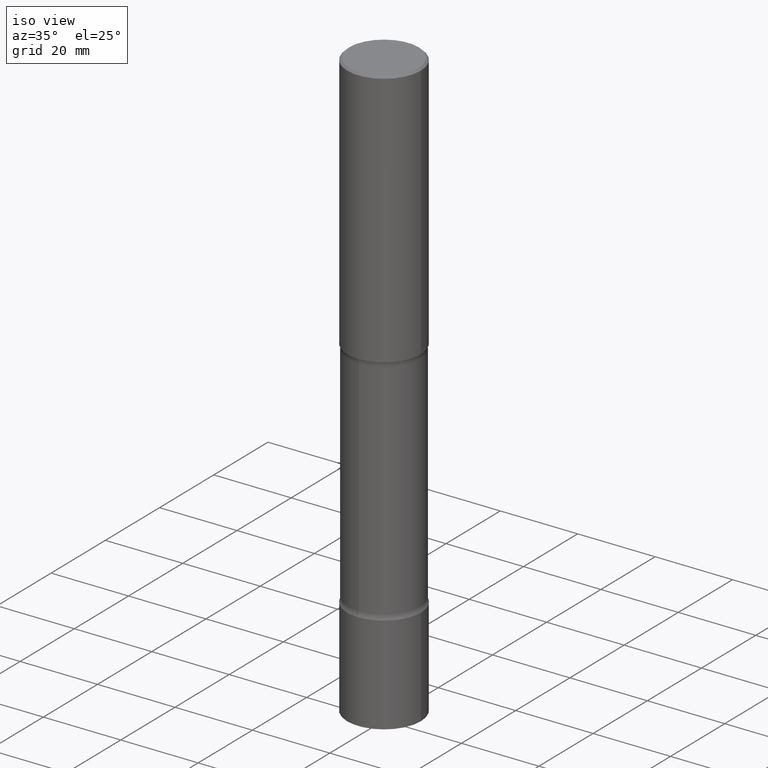
[diagram: clean part render]
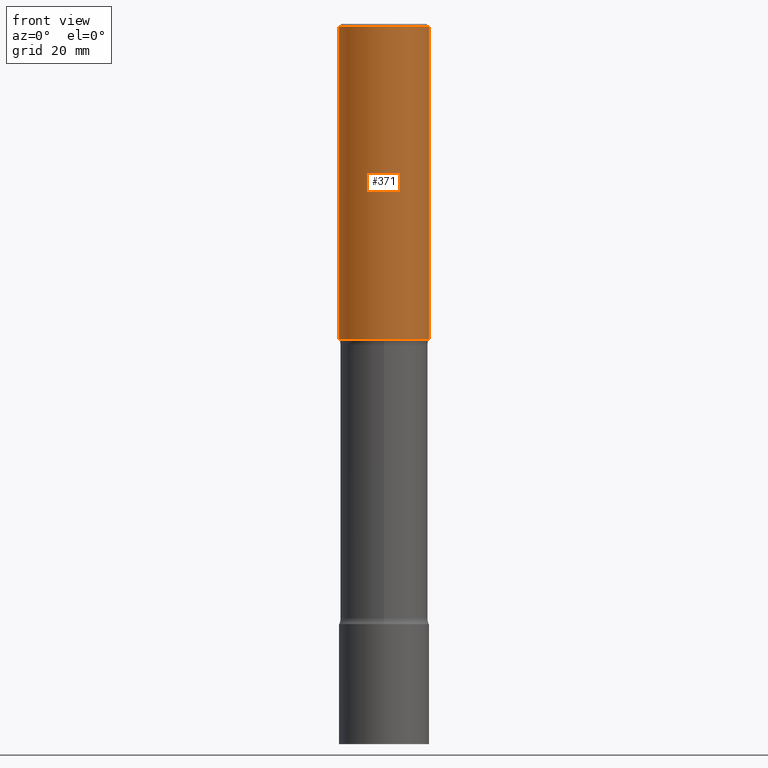
[diagram: tour spotlight — one face highlighted and labeled with its STEP entity id]
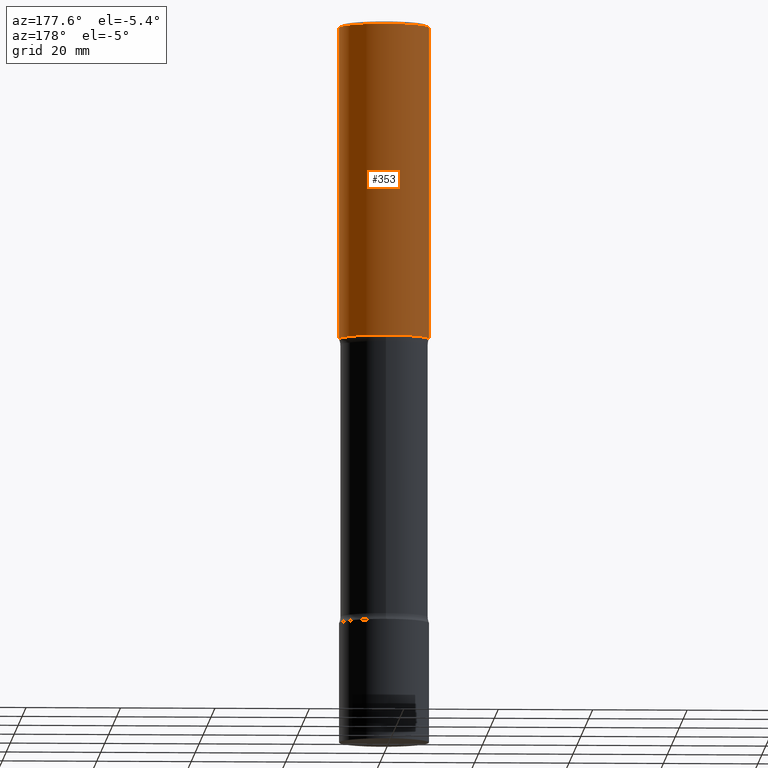
[diagram: tour spotlight — one face highlighted and labeled with its STEP entity id]
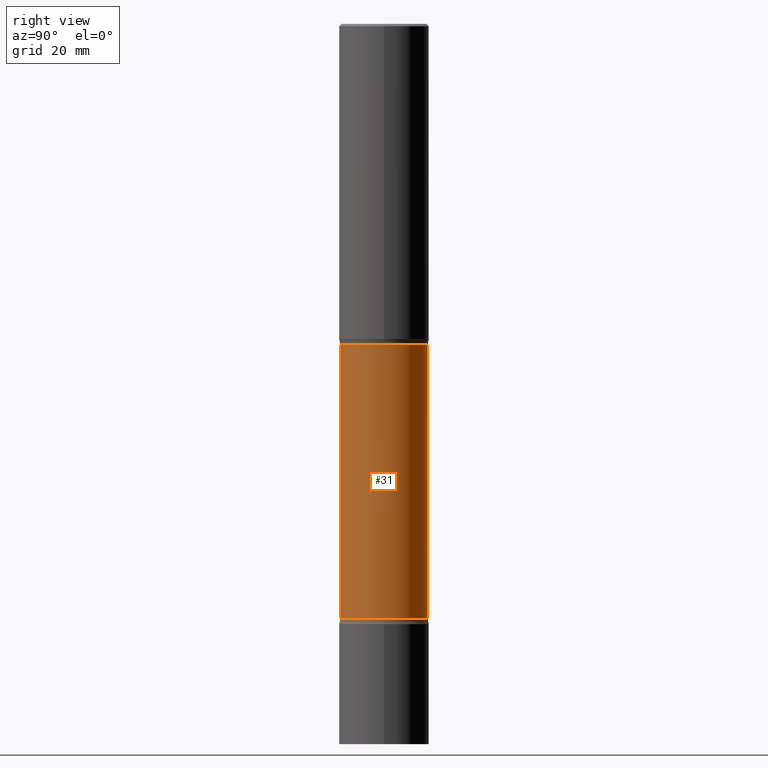
[diagram: tour spotlight — one face highlighted and labeled with its STEP entity id]
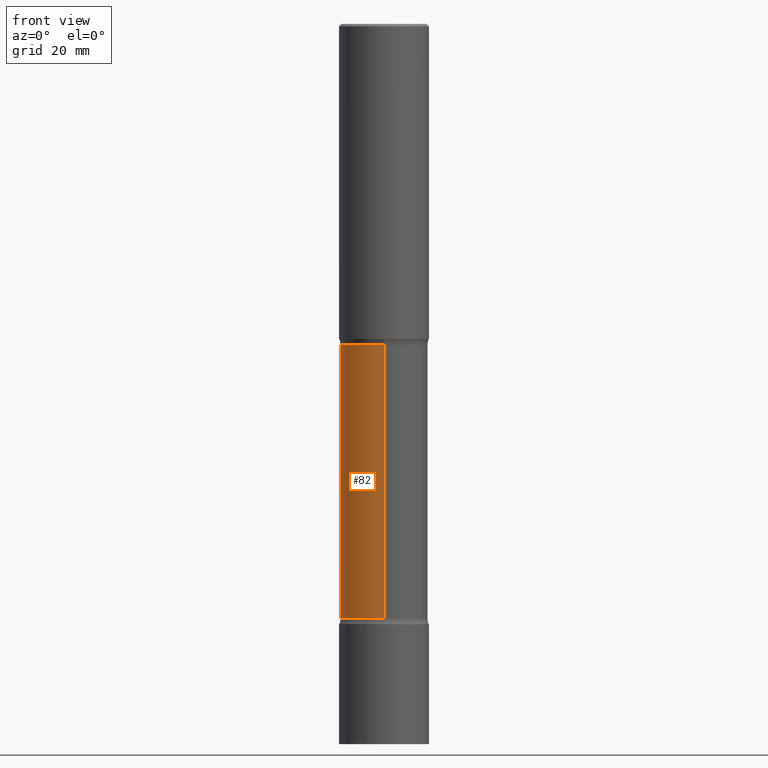
[diagram: tour spotlight — one face highlighted and labeled with its STEP entity id]
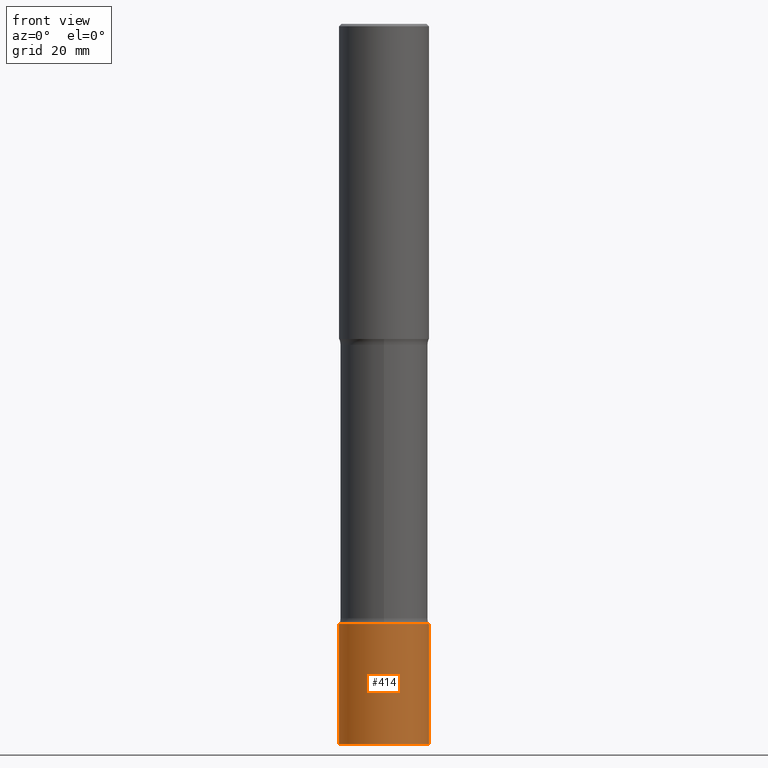
[diagram: tour spotlight — one face highlighted and labeled with its STEP entity id]
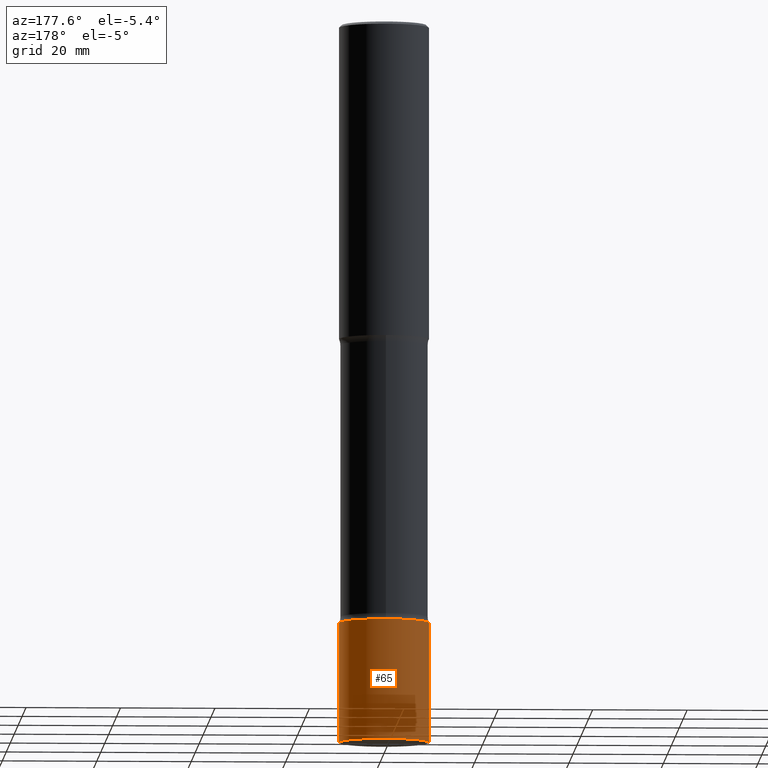
[diagram: tour spotlight — one face highlighted and labeled with its STEP entity id]
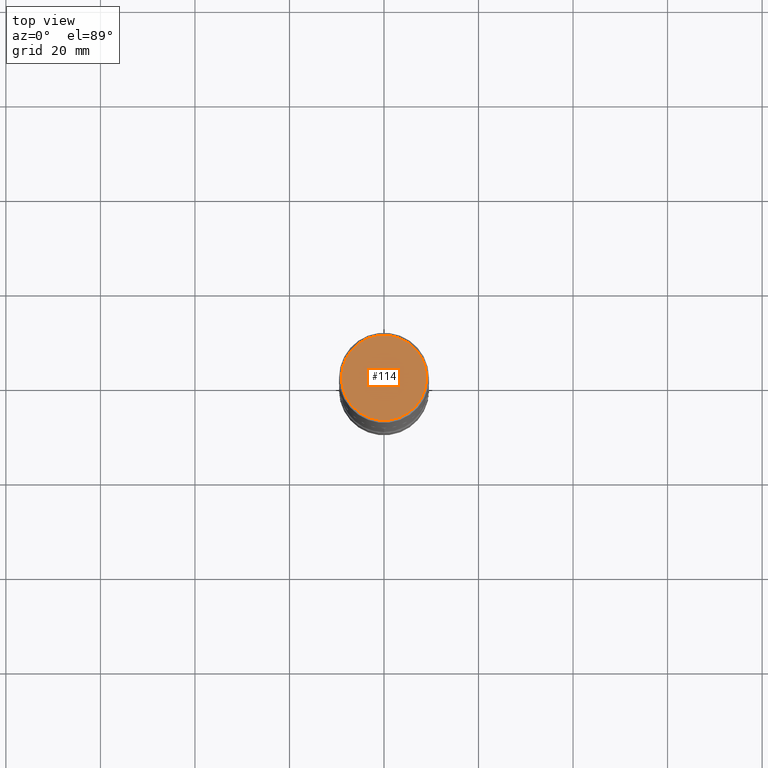
[diagram: tour spotlight — one face highlighted and labeled with its STEP entity id]
A machine part: a face-by-face anatomy tour. The part has 18 B-rep faces; the first image is the clean iso view, then the 7 largest visible faces are spotlighted one at a time (largest first), each with its STEP entity span.

Face 1 — front view, entity #371. In plain terms, the highlighted cylindrical surface (partial cylindrical patch) has radius 9.525 mm, axis along (-0, 0, 1).
Definition (entity closure, byte-faithful):
#2 = DIRECTION ( 'NONE',  ( -2.445468806185136877E-29, 3.491481338843145188E-15, 1.000000000000000000 ) ) ;
#7 = CARTESIAN_POINT ( 'NONE',  ( -0.3749999999999997780, 2.548781377355485141E-15, -0.02000000000000000042 ) ) ;
#28 = EDGE_CURVE ( 'NONE', #110, #337, #222, .T. ) ;
#36 = ORIENTED_EDGE ( 'NONE', *, *, #334, .T. ) ;
#42 = AXIS2_PLACEMENT_3D ( 'NONE', #219, #379, #220 ) ;
#43 = DIRECTION ( 'NONE',  ( -2.445468806185136597E-29, 3.491481338843145583E-15, 1.000000000000000000 ) ) ;
#45 = ORIENTED_EDGE ( 'NONE', *, *, #28, .T. ) ;
#68 = CYLINDRICAL_SURFACE ( 'NONE', #42, 0.3749999999999998890 ) ;
#69 = FACE_OUTER_BOUND ( 'NONE', #148, .T. ) ;
#110 = VERTEX_POINT ( 'NONE', #289 ) ;
#116 = ORIENTED_EDGE ( 'NONE', *, *, #444, .F. ) ;
#142 = CARTESIAN_POINT ( 'NONE',  ( 0.3749999999999998890, -2.618611004132349228E-15, 1.828566290923475362E-29 ) ) ;
#148 = EDGE_LOOP ( 'NONE', ( #471, #45, #36, #116 ) ) ;
#158 = CARTESIAN_POINT ( 'NONE',  ( 6.419355616235983567E-29, -9.165138514463256612E-15, -2.625000000000000000 ) ) ;
#176 = AXIS2_PLACEMENT_3D ( 'NONE', #158, #43, #319 ) ;
#194 = VERTEX_POINT ( 'NONE', #324 ) ;
#219 = CARTESIAN_POINT ( 'NONE',  ( 0.000000000000000000, 0.000000000000000000, 0.000000000000000000 ) ) ;
#220 = DIRECTION ( 'NONE',  ( 1.000000000000000000, -6.982962677686266711E-15, 4.876176775795935793E-29 ) ) ;
#222 = CIRCLE ( 'NONE', #176, 0.3750000000000000555 ) ;
#227 = CARTESIAN_POINT ( 'NONE',  ( -0.3749999999999998890, 2.664535259100374908E-15, -1.844600658845589038E-29 ) ) ;
#229 = CARTESIAN_POINT ( 'NONE',  ( 0.3750000000000000555, -1.178374951859560821E-14, -2.625000000000000000 ) ) ;
#258 = EDGE_CURVE ( 'NONE', #110, #434, #303, .T. ) ;
#267 = LINE ( 'NONE', #142, #475 ) ;
#283 = DIRECTION ( 'NONE',  ( -2.445468806185136597E-29, 3.491481338843145583E-15, 1.000000000000000000 ) ) ;
#289 = CARTESIAN_POINT ( 'NONE',  ( -0.3750000000000000555, -1.952948811519681892E-15, -2.625000000000000000 ) ) ;
#295 = CIRCLE ( 'NONE', #338, 0.3749999999999997780 ) ;
#303 = LINE ( 'NONE', #227, #485 ) ;
#319 = DIRECTION ( 'NONE',  ( 1.000000000000000000, -6.982962677686266711E-15, 0.000000000000000000 ) ) ;
#324 = CARTESIAN_POINT ( 'NONE',  ( 0.3749999999999997780, -2.642516375941185662E-15, -0.02000000000000000042 ) ) ;
#334 = EDGE_CURVE ( 'NONE', #337, #194, #267, .T. ) ;
#337 = VERTEX_POINT ( 'NONE', #229 ) ;
#338 = AXIS2_PLACEMENT_3D ( 'NONE', #435, #283, #477 ) ;
#371 = ADVANCED_FACE ( 'NONE', ( #69 ), #68, .T. ) ;
#379 = DIRECTION ( 'NONE',  ( -2.445468806185136597E-29, 3.491481338843145583E-15, 1.000000000000000000 ) ) ;
#383 = DIRECTION ( 'NONE',  ( -2.445468806185136877E-29, 3.491481338843145188E-15, 1.000000000000000000 ) ) ;
#434 = VERTEX_POINT ( 'NONE', #7 ) ;
#435 = CARTESIAN_POINT ( 'NONE',  ( 4.890937612370273159E-31, -6.982962677686291609E-17, -0.02000000000000000042 ) ) ;
#444 = EDGE_CURVE ( 'NONE', #434, #194, #295, .T. ) ;
#471 = ORIENTED_EDGE ( 'NONE', *, *, #258, .F. ) ;
#475 = VECTOR ( 'NONE', #2, 39.37007874015748143 ) ;
#477 = DIRECTION ( 'NONE',  ( 1.000000000000000000, -6.982962677686265922E-15, 0.000000000000000000 ) ) ;
#485 = VECTOR ( 'NONE', #383, 39.37007874015748143 ) ;

Face 2 — auxiliary view, entity #353. In plain terms, the highlighted cylindrical surface (partial cylindrical patch) has radius 9.525 mm, axis along (-0, 0, 1).
Definition (entity closure, byte-faithful):
#2 = DIRECTION ( 'NONE',  ( -2.445468806185136877E-29, 3.491481338843145188E-15, 1.000000000000000000 ) ) ;
#7 = CARTESIAN_POINT ( 'NONE',  ( -0.3749999999999997780, 2.548781377355485141E-15, -0.02000000000000000042 ) ) ;
#21 = AXIS2_PLACEMENT_3D ( 'NONE', #40, #463, #107 ) ;
#26 = AXIS2_PLACEMENT_3D ( 'NONE', #64, #367, #210 ) ;
#39 = ORIENTED_EDGE ( 'NONE', *, *, #258, .T. ) ;
#40 = CARTESIAN_POINT ( 'NONE',  ( 0.000000000000000000, 0.000000000000000000, 0.000000000000000000 ) ) ;
#50 = EDGE_LOOP ( 'NONE', ( #221, #39, #429, #280 ) ) ;
#64 = CARTESIAN_POINT ( 'NONE',  ( 4.890937612370273159E-31, -6.982962677686291609E-17, -0.02000000000000000042 ) ) ;
#107 = DIRECTION ( 'NONE',  ( 1.000000000000000000, -6.982962677686266711E-15, 4.876176775795935793E-29 ) ) ;
#110 = VERTEX_POINT ( 'NONE', #289 ) ;
#134 = AXIS2_PLACEMENT_3D ( 'NONE', #378, #370, #456 ) ;
#142 = CARTESIAN_POINT ( 'NONE',  ( 0.3749999999999998890, -2.618611004132349228E-15, 1.828566290923475362E-29 ) ) ;
#154 = EDGE_CURVE ( 'NONE', #194, #434, #244, .T. ) ;
#185 = EDGE_CURVE ( 'NONE', #337, #110, #507, .T. ) ;
#194 = VERTEX_POINT ( 'NONE', #324 ) ;
#210 = DIRECTION ( 'NONE',  ( 1.000000000000000000, -6.982962677686265922E-15, 0.000000000000000000 ) ) ;
#221 = ORIENTED_EDGE ( 'NONE', *, *, #185, .T. ) ;
#227 = CARTESIAN_POINT ( 'NONE',  ( -0.3749999999999998890, 2.664535259100374908E-15, -1.844600658845589038E-29 ) ) ;
#229 = CARTESIAN_POINT ( 'NONE',  ( 0.3750000000000000555, -1.178374951859560821E-14, -2.625000000000000000 ) ) ;
#244 = CIRCLE ( 'NONE', #26, 0.3749999999999997780 ) ;
#258 = EDGE_CURVE ( 'NONE', #110, #434, #303, .T. ) ;
#267 = LINE ( 'NONE', #142, #475 ) ;
#270 = FACE_OUTER_BOUND ( 'NONE', #50, .T. ) ;
#280 = ORIENTED_EDGE ( 'NONE', *, *, #334, .F. ) ;
#289 = CARTESIAN_POINT ( 'NONE',  ( -0.3750000000000000555, -1.952948811519681892E-15, -2.625000000000000000 ) ) ;
#303 = LINE ( 'NONE', #227, #485 ) ;
#324 = CARTESIAN_POINT ( 'NONE',  ( 0.3749999999999997780, -2.642516375941185662E-15, -0.02000000000000000042 ) ) ;
#334 = EDGE_CURVE ( 'NONE', #337, #194, #267, .T. ) ;
#337 = VERTEX_POINT ( 'NONE', #229 ) ;
#353 = ADVANCED_FACE ( 'NONE', ( #270 ), #387, .T. ) ;
#367 = DIRECTION ( 'NONE',  ( -2.445468806185136597E-29, 3.491481338843145583E-15, 1.000000000000000000 ) ) ;
#370 = DIRECTION ( 'NONE',  ( -2.445468806185136597E-29, 3.491481338843145583E-15, 1.000000000000000000 ) ) ;
#378 = CARTESIAN_POINT ( 'NONE',  ( 6.419355616235983567E-29, -9.165138514463256612E-15, -2.625000000000000000 ) ) ;
#383 = DIRECTION ( 'NONE',  ( -2.445468806185136877E-29, 3.491481338843145188E-15, 1.000000000000000000 ) ) ;
#387 = CYLINDRICAL_SURFACE ( 'NONE', #21, 0.3749999999999998890 ) ;
#429 = ORIENTED_EDGE ( 'NONE', *, *, #154, .F. ) ;
#434 = VERTEX_POINT ( 'NONE', #7 ) ;
#456 = DIRECTION ( 'NONE',  ( 1.000000000000000000, -6.982962677686266711E-15, 0.000000000000000000 ) ) ;
#463 = DIRECTION ( 'NONE',  ( -2.445468806185136597E-29, 3.491481338843145583E-15, 1.000000000000000000 ) ) ;
#475 = VECTOR ( 'NONE', #2, 39.37007874015748143 ) ;
#485 = VECTOR ( 'NONE', #383, 39.37007874015748143 ) ;
#507 = CIRCLE ( 'NONE', #134, 0.3750000000000000555 ) ;

Face 3 — right view, entity #31. In plain terms, the highlighted cylindrical surface (partial cylindrical patch) has radius 9.271 mm, axis along (0, -0, -1).
Definition (entity closure, byte-faithful):
#8 = DIRECTION ( 'NONE',  ( 2.636232731993833523E-29, -3.218296539476719064E-15, -1.000000000000000000 ) ) ;
#9 = EDGE_CURVE ( 'NONE', #232, #315, #74, .T. ) ;
#30 = CARTESIAN_POINT ( 'NONE',  ( 2.548781377355639757E-15, 0.3649999999999798406, -6.000000000000000888 ) ) ;
#31 = ADVANCED_FACE ( 'NONE', ( #47 ), #197, .T. ) ;
#47 = FACE_OUTER_BOUND ( 'NONE', #226, .T. ) ;
#53 = DIRECTION ( 'NONE',  ( 6.982962677686266711E-15, 1.000000000000000000, -2.993806020453982701E-15 ) ) ;
#66 = CARTESIAN_POINT ( 'NONE',  ( 1.209819553019352279E-28, -1.729974300696207457E-14, -4.951010205144337206 ) ) ;
#73 = ORIENTED_EDGE ( 'NONE', *, *, #153, .F. ) ;
#74 = CIRCLE ( 'NONE', #457, 0.3650000000000005462 ) ;
#121 = ORIENTED_EDGE ( 'NONE', *, *, #9, .T. ) ;
#138 = CARTESIAN_POINT ( 'NONE',  ( -2.504081769186464249E-15, -0.3650000000000212519, -5.999999999999998224 ) ) ;
#146 = CARTESIAN_POINT ( 'NONE',  ( -2.538384259175410069E-15, -0.3650000000000105382, -2.673989794855662794 ) ) ;
#153 = EDGE_CURVE ( 'NONE', #498, #191, #376, .T. ) ;
#191 = VERTEX_POINT ( 'NONE', #250 ) ;
#197 = CYLINDRICAL_SURFACE ( 'NONE', #483, 0.3650000000000005462 ) ;
#202 = CARTESIAN_POINT ( 'NONE',  ( 2.548781377355611753E-15, 0.3649999999999832823, -4.951010205144338983 ) ) ;
#203 = DIRECTION ( 'NONE',  ( 6.982962677686266711E-15, 1.000000000000000000, -2.993806020453982701E-15 ) ) ;
#216 = DIRECTION ( 'NONE',  ( 2.636232731993833523E-29, -3.218296539476719064E-15, -1.000000000000000000 ) ) ;
#226 = EDGE_LOOP ( 'NONE', ( #121, #236, #73, #263 ) ) ;
#232 = VERTEX_POINT ( 'NONE', #487 ) ;
#236 = ORIENTED_EDGE ( 'NONE', *, *, #365, .T. ) ;
#242 = EDGE_CURVE ( 'NONE', #232, #498, #261, .T. ) ;
#250 = CARTESIAN_POINT ( 'NONE',  ( -2.538384259175346566E-15, -0.3650000000000178102, -4.951010205144336318 ) ) ;
#256 = DIRECTION ( 'NONE',  ( 6.982962677686266711E-15, 1.000000000000000000, -2.993806020453982701E-15 ) ) ;
#261 = LINE ( 'NONE', #30, #360 ) ;
#263 = ORIENTED_EDGE ( 'NONE', *, *, #242, .F. ) ;
#312 = CARTESIAN_POINT ( 'NONE',  ( 6.095439793172492199E-29, -9.971616100212176782E-15, -2.673989794855663682 ) ) ;
#315 = VERTEX_POINT ( 'NONE', #146 ) ;
#342 = DIRECTION ( 'NONE',  ( 2.636232731993833523E-29, -3.218296539476718669E-15, -1.000000000000000000 ) ) ;
#360 = VECTOR ( 'NONE', #342, 39.37007874015748143 ) ;
#365 = EDGE_CURVE ( 'NONE', #315, #191, #470, .T. ) ;
#376 = CIRCLE ( 'NONE', #439, 0.3650000000000005462 ) ;
#418 = DIRECTION ( 'NONE',  ( 2.636232731993833523E-29, -3.218296539476718669E-15, -1.000000000000000000 ) ) ;
#436 = CARTESIAN_POINT ( 'NONE',  ( 1.486357676291951426E-28, -2.067570323369244540E-14, -5.999999999999999112 ) ) ;
#439 = AXIS2_PLACEMENT_3D ( 'NONE', #66, #216, #256 ) ;
#457 = AXIS2_PLACEMENT_3D ( 'NONE', #312, #8, #53 ) ;
#470 = LINE ( 'NONE', #138, #508 ) ;
#483 = AXIS2_PLACEMENT_3D ( 'NONE', #436, #484, #203 ) ;
#484 = DIRECTION ( 'NONE',  ( 2.636232731993833523E-29, -3.218296539476719064E-15, -1.000000000000000000 ) ) ;
#487 = CARTESIAN_POINT ( 'NONE',  ( 2.548781377355552194E-15, 0.3649999999999905542, -2.673989794855665014 ) ) ;
#498 = VERTEX_POINT ( 'NONE', #202 ) ;
#508 = VECTOR ( 'NONE', #418, 39.37007874015748143 ) ;

Face 4 — front view, entity #82. In plain terms, the highlighted cylindrical surface (partial cylindrical patch) has radius 9.271 mm, axis along (0, -0, -1).
Definition (entity closure, byte-faithful):
#17 = CARTESIAN_POINT ( 'NONE',  ( 6.095439793172492199E-29, -9.971616100212176782E-15, -2.673989794855663682 ) ) ;
#19 = EDGE_CURVE ( 'NONE', #315, #232, #102, .T. ) ;
#30 = CARTESIAN_POINT ( 'NONE',  ( 2.548781377355639757E-15, 0.3649999999999798406, -6.000000000000000888 ) ) ;
#63 = DIRECTION ( 'NONE',  ( 6.982962677686266711E-15, 1.000000000000000000, -2.993806020453982701E-15 ) ) ;
#82 = ADVANCED_FACE ( 'NONE', ( #247 ), #476, .T. ) ;
#89 = ORIENTED_EDGE ( 'NONE', *, *, #365, .F. ) ;
#102 = CIRCLE ( 'NONE', #474, 0.3650000000000005462 ) ;
#131 = DIRECTION ( 'NONE',  ( 2.636232731993833523E-29, -3.218296539476719064E-15, -1.000000000000000000 ) ) ;
#138 = CARTESIAN_POINT ( 'NONE',  ( -2.504081769186464249E-15, -0.3650000000000212519, -5.999999999999998224 ) ) ;
#146 = CARTESIAN_POINT ( 'NONE',  ( -2.538384259175410069E-15, -0.3650000000000105382, -2.673989794855662794 ) ) ;
#155 = DIRECTION ( 'NONE',  ( 2.636232731993833523E-29, -3.218296539476719064E-15, -1.000000000000000000 ) ) ;
#157 = DIRECTION ( 'NONE',  ( 6.982962677686266711E-15, 1.000000000000000000, -2.993806020453982701E-15 ) ) ;
#159 = AXIS2_PLACEMENT_3D ( 'NONE', #359, #131, #63 ) ;
#164 = DIRECTION ( 'NONE',  ( 6.982962677686266711E-15, 1.000000000000000000, -2.993806020453982701E-15 ) ) ;
#191 = VERTEX_POINT ( 'NONE', #250 ) ;
#202 = CARTESIAN_POINT ( 'NONE',  ( 2.548781377355611753E-15, 0.3649999999999832823, -4.951010205144338983 ) ) ;
#225 = CIRCLE ( 'NONE', #495, 0.3650000000000005462 ) ;
#230 = EDGE_LOOP ( 'NONE', ( #89, #420, #441, #266 ) ) ;
#232 = VERTEX_POINT ( 'NONE', #487 ) ;
#242 = EDGE_CURVE ( 'NONE', #232, #498, #261, .T. ) ;
#247 = FACE_OUTER_BOUND ( 'NONE', #230, .T. ) ;
#250 = CARTESIAN_POINT ( 'NONE',  ( -2.538384259175346566E-15, -0.3650000000000178102, -4.951010205144336318 ) ) ;
#261 = LINE ( 'NONE', #30, #360 ) ;
#266 = ORIENTED_EDGE ( 'NONE', *, *, #440, .F. ) ;
#315 = VERTEX_POINT ( 'NONE', #146 ) ;
#342 = DIRECTION ( 'NONE',  ( 2.636232731993833523E-29, -3.218296539476718669E-15, -1.000000000000000000 ) ) ;
#352 = CARTESIAN_POINT ( 'NONE',  ( 1.209819553019352279E-28, -1.729974300696207457E-14, -4.951010205144337206 ) ) ;
#359 = CARTESIAN_POINT ( 'NONE',  ( 1.486357676291951426E-28, -2.067570323369244540E-14, -5.999999999999999112 ) ) ;
#360 = VECTOR ( 'NONE', #342, 39.37007874015748143 ) ;
#361 = DIRECTION ( 'NONE',  ( 2.636232731993833523E-29, -3.218296539476719064E-15, -1.000000000000000000 ) ) ;
#365 = EDGE_CURVE ( 'NONE', #315, #191, #470, .T. ) ;
#418 = DIRECTION ( 'NONE',  ( 2.636232731993833523E-29, -3.218296539476718669E-15, -1.000000000000000000 ) ) ;
#420 = ORIENTED_EDGE ( 'NONE', *, *, #19, .T. ) ;
#440 = EDGE_CURVE ( 'NONE', #191, #498, #225, .T. ) ;
#441 = ORIENTED_EDGE ( 'NONE', *, *, #242, .T. ) ;
#470 = LINE ( 'NONE', #138, #508 ) ;
#474 = AXIS2_PLACEMENT_3D ( 'NONE', #17, #361, #164 ) ;
#476 = CYLINDRICAL_SURFACE ( 'NONE', #159, 0.3650000000000005462 ) ;
#487 = CARTESIAN_POINT ( 'NONE',  ( 2.548781377355552194E-15, 0.3649999999999905542, -2.673989794855665014 ) ) ;
#495 = AXIS2_PLACEMENT_3D ( 'NONE', #352, #155, #157 ) ;
#498 = VERTEX_POINT ( 'NONE', #202 ) ;
#508 = VECTOR ( 'NONE', #418, 39.37007874015748143 ) ;

Face 5 — front view, entity #414. In plain terms, the highlighted cylindrical surface (partial cylindrical patch) has radius 9.525 mm, axis along (-0, 0, 1).
Definition (entity closure, byte-faithful):
#3 = VERTEX_POINT ( 'NONE', #91 ) ;
#11 = VECTOR ( 'NONE', #437, 39.37007874015748143 ) ;
#12 = CARTESIAN_POINT ( 'NONE',  ( 1.467281283711081958E-28, -2.094888803305887271E-14, -6.000000000000000888 ) ) ;
#13 = ORIENTED_EDGE ( 'NONE', *, *, #335, .T. ) ;
#38 = CARTESIAN_POINT ( 'NONE',  ( 1.222734403092568523E-28, -1.745740669421572989E-14, -5.000000000000000000 ) ) ;
#77 = DIRECTION ( 'NONE',  ( -2.445468806185136877E-29, 3.491481338843145188E-15, 1.000000000000000000 ) ) ;
#83 = CARTESIAN_POINT ( 'NONE',  ( -0.3750000000000001110, -1.653861210453692402E-14, -5.000000000000000000 ) ) ;
#91 = CARTESIAN_POINT ( 'NONE',  ( 0.3750000000000001110, -2.356749903719122272E-14, -6.000000000000000888 ) ) ;
#103 = AXIS2_PLACEMENT_3D ( 'NONE', #12, #204, #122 ) ;
#112 = CIRCLE ( 'NONE', #417, 0.3750000000000001110 ) ;
#122 = DIRECTION ( 'NONE',  ( 1.000000000000000000, -6.982962677686260400E-15, 0.000000000000000000 ) ) ;
#156 = ORIENTED_EDGE ( 'NONE', *, *, #423, .T. ) ;
#198 = LINE ( 'NONE', #281, #11 ) ;
#204 = DIRECTION ( 'NONE',  ( -2.445468806185136597E-29, 3.491481338843145583E-15, 1.000000000000000000 ) ) ;
#224 = DIRECTION ( 'NONE',  ( 1.000000000000000000, -6.982962677686265922E-15, 0.000000000000000000 ) ) ;
#228 = VERTEX_POINT ( 'NONE', #326 ) ;
#231 = CYLINDRICAL_SURFACE ( 'NONE', #392, 0.3750000000000001110 ) ;
#235 = DIRECTION ( 'NONE',  ( -2.445468806185136597E-29, 3.491481338843145583E-15, 1.000000000000000000 ) ) ;
#237 = CARTESIAN_POINT ( 'NONE',  ( -0.3750000000000001110, -1.653861210453692402E-14, -6.000000000000000888 ) ) ;
#243 = ORIENTED_EDGE ( 'NONE', *, *, #372, .F. ) ;
#269 = EDGE_LOOP ( 'NONE', ( #395, #156, #13, #243 ) ) ;
#281 = CARTESIAN_POINT ( 'NONE',  ( -0.3750000000000001110, 2.664535259100376486E-15, -1.844600658845590159E-29 ) ) ;
#300 = CARTESIAN_POINT ( 'NONE',  ( 0.3750000000000001110, -2.618611004132350411E-15, 1.828566290923476483E-29 ) ) ;
#320 = VECTOR ( 'NONE', #77, 39.37007874015748143 ) ;
#326 = CARTESIAN_POINT ( 'NONE',  ( 0.3750000000000001110, -2.007601769834807990E-14, -5.000000000000000000 ) ) ;
#335 = EDGE_CURVE ( 'NONE', #3, #228, #461, .T. ) ;
#356 = DIRECTION ( 'NONE',  ( 1.000000000000000000, -6.982962677686265922E-15, 4.876176775795935793E-29 ) ) ;
#372 = EDGE_CURVE ( 'NONE', #478, #228, #112, .T. ) ;
#380 = DIRECTION ( 'NONE',  ( -2.445468806185136597E-29, 3.491481338843145583E-15, 1.000000000000000000 ) ) ;
#390 = CARTESIAN_POINT ( 'NONE',  ( 0.000000000000000000, 0.000000000000000000, 0.000000000000000000 ) ) ;
#392 = AXIS2_PLACEMENT_3D ( 'NONE', #390, #235, #356 ) ;
#395 = ORIENTED_EDGE ( 'NONE', *, *, #488, .F. ) ;
#400 = CIRCLE ( 'NONE', #103, 0.3750000000000001110 ) ;
#401 = FACE_OUTER_BOUND ( 'NONE', #269, .T. ) ;
#414 = ADVANCED_FACE ( 'NONE', ( #401 ), #231, .T. ) ;
#417 = AXIS2_PLACEMENT_3D ( 'NONE', #38, #380, #224 ) ;
#423 = EDGE_CURVE ( 'NONE', #431, #3, #400, .T. ) ;
#431 = VERTEX_POINT ( 'NONE', #237 ) ;
#437 = DIRECTION ( 'NONE',  ( -2.445468806185136877E-29, 3.491481338843145188E-15, 1.000000000000000000 ) ) ;
#461 = LINE ( 'NONE', #300, #320 ) ;
#478 = VERTEX_POINT ( 'NONE', #83 ) ;
#488 = EDGE_CURVE ( 'NONE', #431, #478, #198, .T. ) ;

Face 6 — auxiliary view, entity #65. In plain terms, the highlighted cylindrical surface (partial cylindrical patch) has radius 9.525 mm, axis along (-0, 0, 1).
Definition (entity closure, byte-faithful):
#3 = VERTEX_POINT ( 'NONE', #91 ) ;
#11 = VECTOR ( 'NONE', #437, 39.37007874015748143 ) ;
#15 = FACE_OUTER_BOUND ( 'NONE', #427, .T. ) ;
#24 = DIRECTION ( 'NONE',  ( 1.000000000000000000, -6.982962677686260400E-15, 0.000000000000000000 ) ) ;
#65 = ADVANCED_FACE ( 'NONE', ( #15 ), #199, .T. ) ;
#76 = ORIENTED_EDGE ( 'NONE', *, *, #335, .F. ) ;
#77 = DIRECTION ( 'NONE',  ( -2.445468806185136877E-29, 3.491481338843145188E-15, 1.000000000000000000 ) ) ;
#83 = CARTESIAN_POINT ( 'NONE',  ( -0.3750000000000001110, -1.653861210453692402E-14, -5.000000000000000000 ) ) ;
#91 = CARTESIAN_POINT ( 'NONE',  ( 0.3750000000000001110, -2.356749903719122272E-14, -6.000000000000000888 ) ) ;
#95 = AXIS2_PLACEMENT_3D ( 'NONE', #101, #136, #410 ) ;
#101 = CARTESIAN_POINT ( 'NONE',  ( 1.222734403092568523E-28, -1.745740669421572989E-14, -5.000000000000000000 ) ) ;
#124 = CIRCLE ( 'NONE', #95, 0.3750000000000001110 ) ;
#136 = DIRECTION ( 'NONE',  ( -2.445468806185136597E-29, 3.491481338843145583E-15, 1.000000000000000000 ) ) ;
#161 = ORIENTED_EDGE ( 'NONE', *, *, #488, .T. ) ;
#172 = CARTESIAN_POINT ( 'NONE',  ( 1.467281283711081958E-28, -2.094888803305887271E-14, -6.000000000000000888 ) ) ;
#187 = ORIENTED_EDGE ( 'NONE', *, *, #223, .F. ) ;
#192 = EDGE_CURVE ( 'NONE', #3, #431, #453, .T. ) ;
#198 = LINE ( 'NONE', #281, #11 ) ;
#199 = CYLINDRICAL_SURFACE ( 'NONE', #233, 0.3750000000000001110 ) ;
#205 = ORIENTED_EDGE ( 'NONE', *, *, #192, .T. ) ;
#223 = EDGE_CURVE ( 'NONE', #228, #478, #124, .T. ) ;
#228 = VERTEX_POINT ( 'NONE', #326 ) ;
#233 = AXIS2_PLACEMENT_3D ( 'NONE', #287, #358, #317 ) ;
#237 = CARTESIAN_POINT ( 'NONE',  ( -0.3750000000000001110, -1.653861210453692402E-14, -6.000000000000000888 ) ) ;
#281 = CARTESIAN_POINT ( 'NONE',  ( -0.3750000000000001110, 2.664535259100376486E-15, -1.844600658845590159E-29 ) ) ;
#287 = CARTESIAN_POINT ( 'NONE',  ( 0.000000000000000000, 0.000000000000000000, 0.000000000000000000 ) ) ;
#300 = CARTESIAN_POINT ( 'NONE',  ( 0.3750000000000001110, -2.618611004132350411E-15, 1.828566290923476483E-29 ) ) ;
#317 = DIRECTION ( 'NONE',  ( 1.000000000000000000, -6.982962677686265922E-15, 4.876176775795935793E-29 ) ) ;
#320 = VECTOR ( 'NONE', #77, 39.37007874015748143 ) ;
#322 = DIRECTION ( 'NONE',  ( -2.445468806185136597E-29, 3.491481338843145583E-15, 1.000000000000000000 ) ) ;
#326 = CARTESIAN_POINT ( 'NONE',  ( 0.3750000000000001110, -2.007601769834807990E-14, -5.000000000000000000 ) ) ;
#330 = AXIS2_PLACEMENT_3D ( 'NONE', #172, #322, #24 ) ;
#335 = EDGE_CURVE ( 'NONE', #3, #228, #461, .T. ) ;
#358 = DIRECTION ( 'NONE',  ( -2.445468806185136597E-29, 3.491481338843145583E-15, 1.000000000000000000 ) ) ;
#410 = DIRECTION ( 'NONE',  ( 1.000000000000000000, -6.982962677686265922E-15, 0.000000000000000000 ) ) ;
#427 = EDGE_LOOP ( 'NONE', ( #205, #161, #187, #76 ) ) ;
#431 = VERTEX_POINT ( 'NONE', #237 ) ;
#437 = DIRECTION ( 'NONE',  ( -2.445468806185136877E-29, 3.491481338843145188E-15, 1.000000000000000000 ) ) ;
#453 = CIRCLE ( 'NONE', #330, 0.3750000000000001110 ) ;
#461 = LINE ( 'NONE', #300, #320 ) ;
#478 = VERTEX_POINT ( 'NONE', #83 ) ;
#488 = EDGE_CURVE ( 'NONE', #431, #478, #198, .T. ) ;

Face 7 — top view, entity #114. In plain terms, the highlighted planar face has unit normal (0, -0, -1).
Definition (entity closure, byte-faithful):
#14 = CARTESIAN_POINT ( 'NONE',  ( -1.043851414335219820E-46, 1.490343170380447200E-32, 4.268512490100411279E-18 ) ) ;
#29 = DIRECTION ( 'NONE',  ( -2.445468806185136597E-29, 3.491481338843145583E-15, 1.000000000000000000 ) ) ;
#105 = CARTESIAN_POINT ( 'NONE',  ( 0.3549999999999997602, -2.538996582575039076E-15, 4.268512490117958041E-18 ) ) ;
#114 = ADVANCED_FACE ( 'NONE', ( #454 ), #332, .F. ) ;
#139 = ORIENTED_EDGE ( 'NONE', *, *, #189, .T. ) ;
#149 = AXIS2_PLACEMENT_3D ( 'NONE', #178, #29, #294 ) ;
#162 = DIRECTION ( 'NONE',  ( -2.445468806185136597E-29, 3.491481338843145583E-15, 1.000000000000000000 ) ) ;
#167 = CIRCLE ( 'NONE', #458, 0.3549999999999997602 ) ;
#178 = CARTESIAN_POINT ( 'NONE',  ( -1.043851414335219820E-46, 1.490343170380447200E-32, 4.268512490100411279E-18 ) ) ;
#189 = EDGE_CURVE ( 'NONE', #305, #504, #268, .T. ) ;
#213 = DIRECTION ( 'NONE',  ( -1.000000000000000000, 6.982962677686265922E-15, -4.876176775795935793E-29 ) ) ;
#245 = ORIENTED_EDGE ( 'NONE', *, *, #432, .T. ) ;
#268 = CIRCLE ( 'NONE', #149, 0.3549999999999997602 ) ;
#291 = DIRECTION ( 'NONE',  ( 2.438088387897960049E-29, -3.491481338843145188E-15, -1.000000000000000000 ) ) ;
#294 = DIRECTION ( 'NONE',  ( 1.000000000000000000, -6.982962677686266711E-15, 4.876231632511991546E-29 ) ) ;
#305 = VERTEX_POINT ( 'NONE', #105 ) ;
#314 = DIRECTION ( 'NONE',  ( 1.000000000000000000, -6.982962677686266711E-15, 4.876231632511991546E-29 ) ) ;
#332 = PLANE ( 'NONE',  #494 ) ;
#381 = EDGE_LOOP ( 'NONE', ( #245, #139 ) ) ;
#396 = CARTESIAN_POINT ( 'NONE',  ( -0.3549999999999997602, 2.513866563967054280E-15, 4.268512490082953109E-18 ) ) ;
#404 = CARTESIAN_POINT ( 'NONE',  ( 2.478951750578623026E-15, 0.3549999999999997602, -1.237341619044265638E-15 ) ) ;
#432 = EDGE_CURVE ( 'NONE', #504, #305, #167, .T. ) ;
#454 = FACE_OUTER_BOUND ( 'NONE', #381, .T. ) ;
#458 = AXIS2_PLACEMENT_3D ( 'NONE', #14, #162, #314 ) ;
#494 = AXIS2_PLACEMENT_3D ( 'NONE', #404, #291, #213 ) ;
#504 = VERTEX_POINT ( 'NONE', #396 ) ;